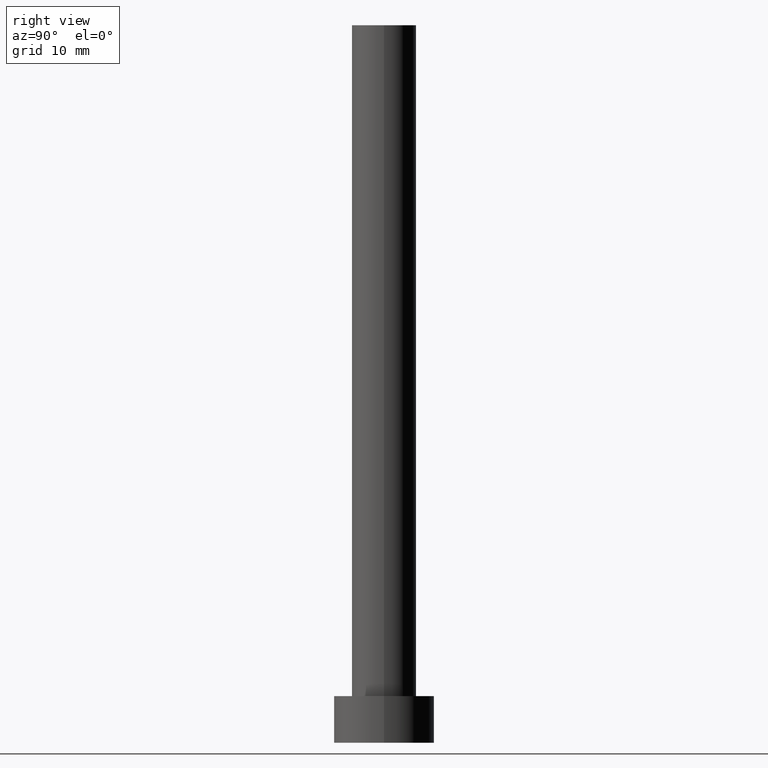
[diagram: clean part render]
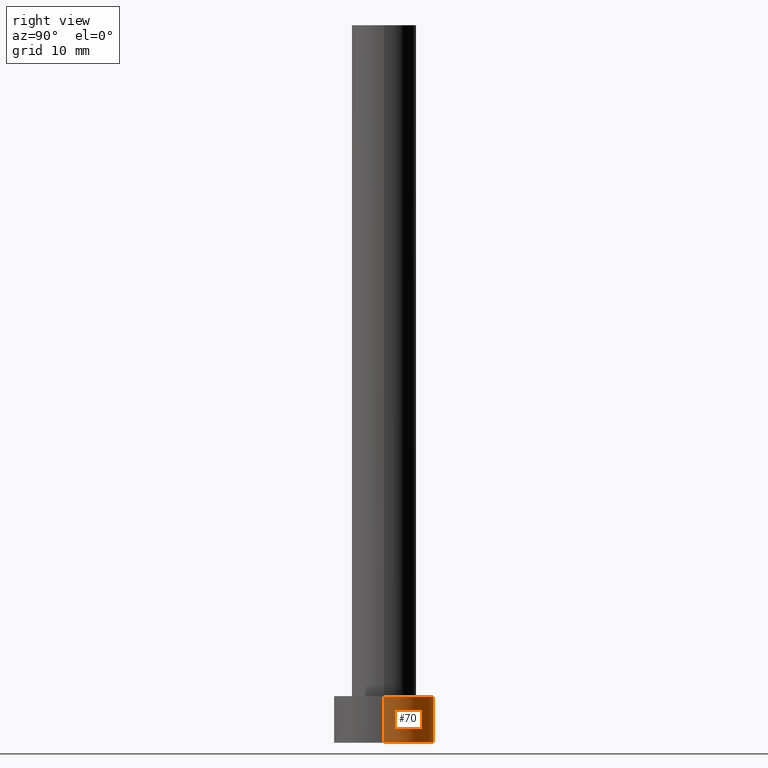
[diagram: same view with one face highlighted and labeled with its STEP entity id]
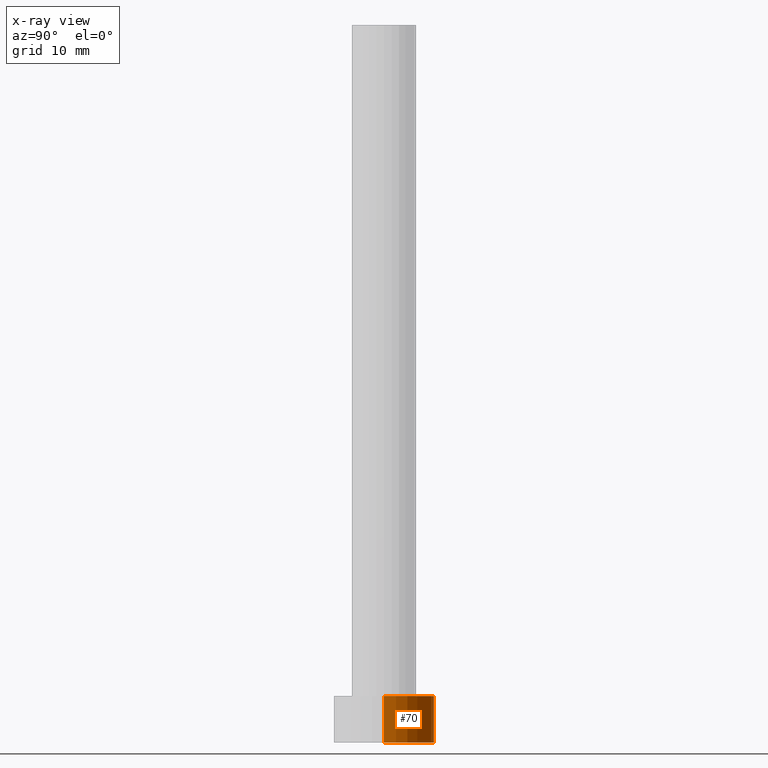
[diagram: x-ray of the same camera — body ghosted, the highlighted face saturated]
A machine part, right view. The second image highlights one B-rep face of the part: STEP entity #70.
The next image is the same camera in x-ray: the body ghosted, the highlighted face saturated — about 0% of this face is hidden behind the body in this view.
In plain terms, the highlighted cylindrical surface (partial cylindrical patch) has radius 7 mm, axis along (-0, -0, -1).
Its self-contained STEP definition (entity closure, byte-faithful):
#2 = VECTOR ( 'NONE', #242, 1000.000000000000000 ) ;
#5 = ORIENTED_EDGE ( 'NONE', *, *, #157, .F. ) ;
#6 = FACE_OUTER_BOUND ( 'NONE', #219, .T. ) ;
#12 = DIRECTION ( 'NONE',  ( -1.000000000000000000, 0.000000000000000000, 0.000000000000000000 ) ) ;
#15 = CARTESIAN_POINT ( 'NONE',  ( 0.000000000000000000, 0.000000000000000000, 0.000000000000000000 ) ) ;
#25 = EDGE_CURVE ( 'NONE', #160, #140, #161, .T. ) ;
#33 = CARTESIAN_POINT ( 'NONE',  ( -7.000000000000000000, 0.000000000000000000, 6.500000000000000000 ) ) ;
#55 = CARTESIAN_POINT ( 'NONE',  ( 7.000000000000000000, 8.572527594031471218E-16, 6.500000000000000000 ) ) ;
#59 = DIRECTION ( 'NONE',  ( 1.000000000000000000, 0.000000000000000000, 0.000000000000000000 ) ) ;
#67 = DIRECTION ( 'NONE',  ( 1.000000000000000000, 0.000000000000000000, 0.000000000000000000 ) ) ;
#70 = ADVANCED_FACE ( 'NONE', ( #6 ), #223, .T. ) ;
#85 = AXIS2_PLACEMENT_3D ( 'NONE', #237, #185, #67 ) ;
#92 = CARTESIAN_POINT ( 'NONE',  ( 7.000000000000000000, 8.572527594031471218E-16, 6.500000000000000000 ) ) ;
#109 = ORIENTED_EDGE ( 'NONE', *, *, #25, .T. ) ;
#113 = CARTESIAN_POINT ( 'NONE',  ( -7.000000000000000000, 0.000000000000000000, 0.000000000000000000 ) ) ;
#127 = DIRECTION ( 'NONE',  ( -0.000000000000000000, -0.000000000000000000, -1.000000000000000000 ) ) ;
#140 = VERTEX_POINT ( 'NONE', #183 ) ;
#142 = DIRECTION ( 'NONE',  ( -0.000000000000000000, -0.000000000000000000, -1.000000000000000000 ) ) ;
#143 = CARTESIAN_POINT ( 'NONE',  ( 0.000000000000000000, 0.000000000000000000, 6.500000000000000000 ) ) ;
#144 = VERTEX_POINT ( 'NONE', #244 ) ;
#145 = LINE ( 'NONE', #33, #205 ) ;
#146 = ORIENTED_EDGE ( 'NONE', *, *, #191, .F. ) ;
#152 = DIRECTION ( 'NONE',  ( 0.000000000000000000, 0.000000000000000000, 1.000000000000000000 ) ) ;
#157 = EDGE_CURVE ( 'NONE', #144, #184, #145, .T. ) ;
#160 = VERTEX_POINT ( 'NONE', #55 ) ;
#161 = LINE ( 'NONE', #92, #2 ) ;
#175 = AXIS2_PLACEMENT_3D ( 'NONE', #15, #152, #59 ) ;
#176 = CIRCLE ( 'NONE', #85, 7.000000000000000000 ) ;
#183 = CARTESIAN_POINT ( 'NONE',  ( 7.000000000000000000, 8.572527594031471218E-16, 0.000000000000000000 ) ) ;
#184 = VERTEX_POINT ( 'NONE', #113 ) ;
#185 = DIRECTION ( 'NONE',  ( 0.000000000000000000, 0.000000000000000000, 1.000000000000000000 ) ) ;
#191 = EDGE_CURVE ( 'NONE', #160, #144, #176, .T. ) ;
#205 = VECTOR ( 'NONE', #142, 1000.000000000000000 ) ;
#214 = CIRCLE ( 'NONE', #175, 7.000000000000000000 ) ;
#219 = EDGE_LOOP ( 'NONE', ( #146, #109, #236, #5 ) ) ;
#223 = CYLINDRICAL_SURFACE ( 'NONE', #233, 7.000000000000000000 ) ;
#233 = AXIS2_PLACEMENT_3D ( 'NONE', #143, #127, #12 ) ;
#236 = ORIENTED_EDGE ( 'NONE', *, *, #248, .T. ) ;
#237 = CARTESIAN_POINT ( 'NONE',  ( 0.000000000000000000, 0.000000000000000000, 6.500000000000000000 ) ) ;
#242 = DIRECTION ( 'NONE',  ( -0.000000000000000000, -0.000000000000000000, -1.000000000000000000 ) ) ;
#244 = CARTESIAN_POINT ( 'NONE',  ( -7.000000000000000000, 0.000000000000000000, 6.500000000000000000 ) ) ;
#248 = EDGE_CURVE ( 'NONE', #140, #184, #214, .T. ) ;